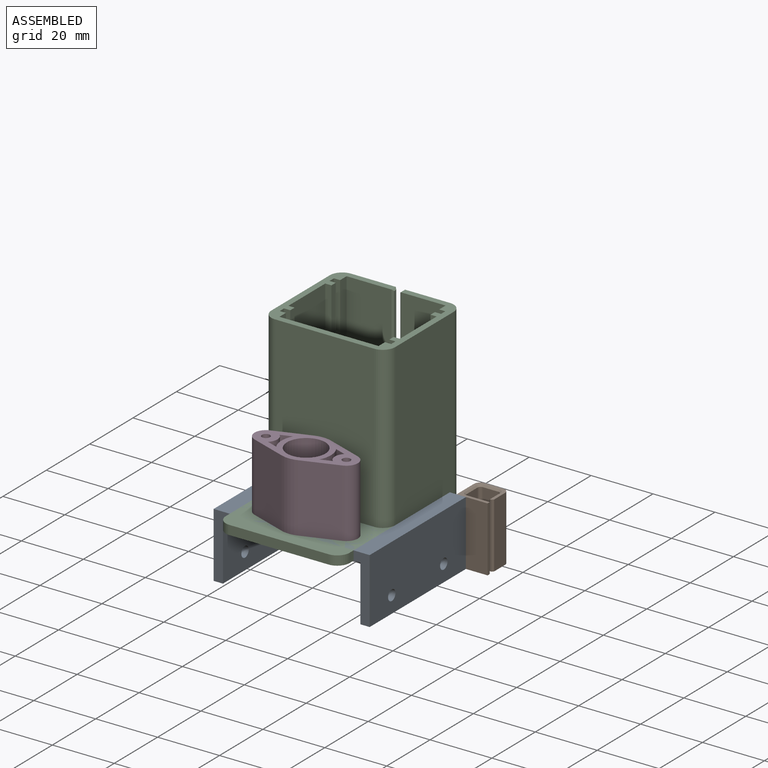
[diagram: assembled view]
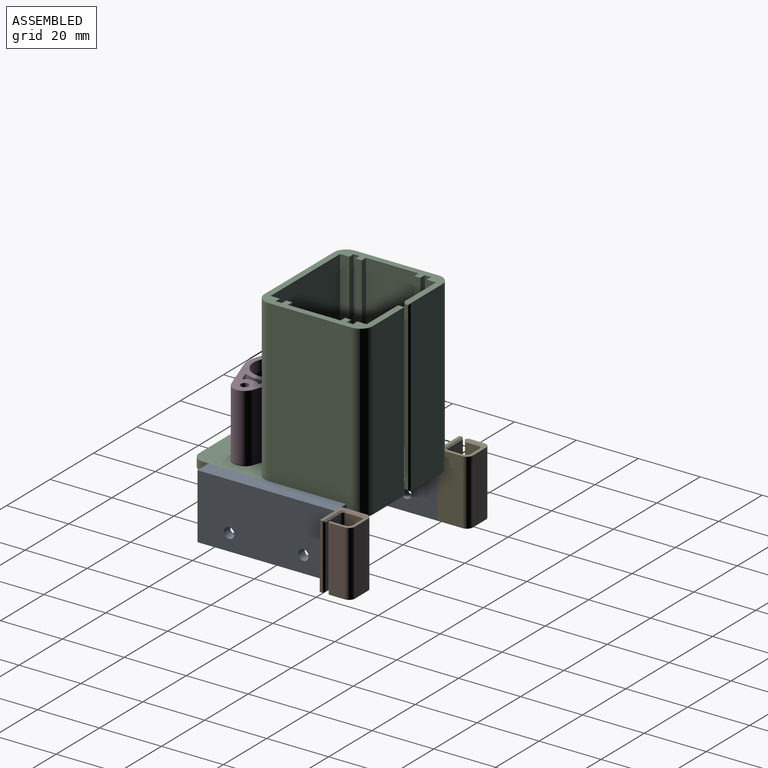
[diagram: assembled view, second angle]
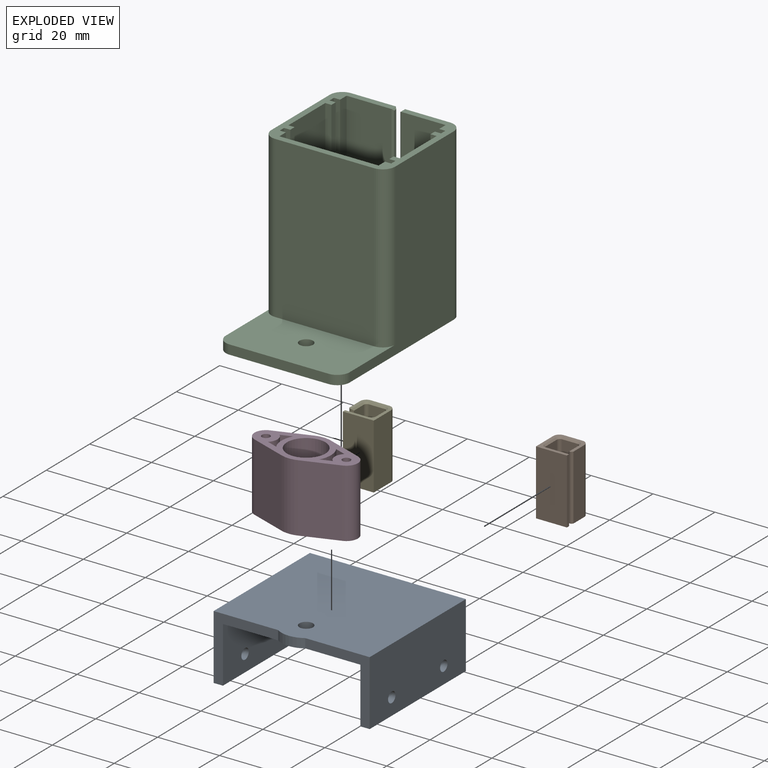
[diagram: exploded view]
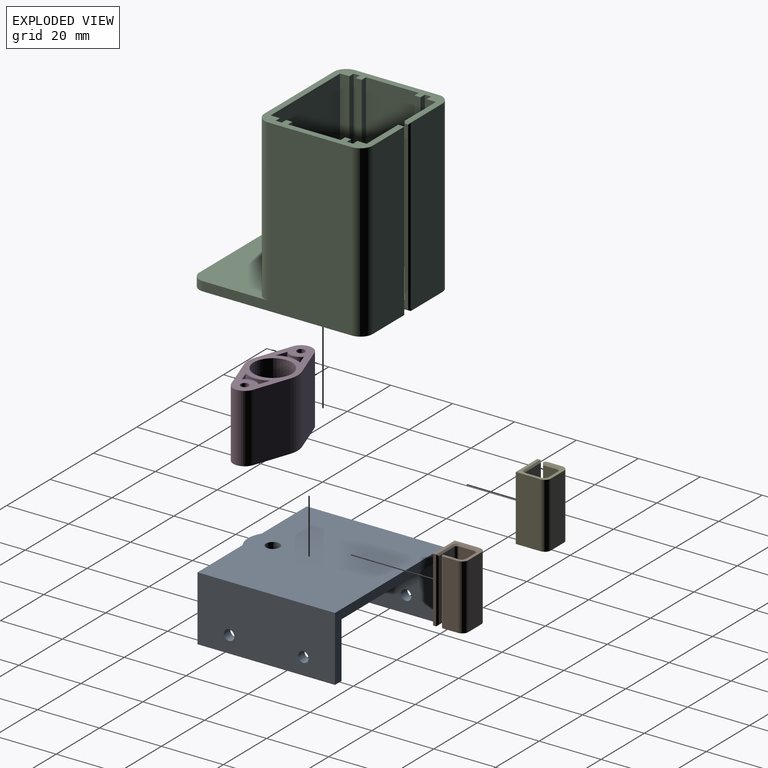
[diagram: exploded view, second angle]
ASSEMBLY  parts=5 mates=4
PART A: 17 faces, bbox 50.4x45.7x21 mm
  f0: plane 45.7x44.4mm, normal (0,0,-1), area 1963.9mm2, adj f1,f2,f3,f5,f7,f9,f11
  f1: plane 21x20.83mm, normal (0,-1,0), area 116.5mm2, adj f0,f2,f6,f8,f9,f10
  f2: cylinder r=8mm len=8.74mm, axis (0,0,-1), area 27.7mm2, adj f0,f1,f3,f8
  f3: plane 21x20.83mm, normal (0,-1,0), area 116.5mm2, adj f0,f2,f4,f8,f11,f12
  f4: plane 44.4x21mm, normal (1,0,0), area 914.2mm2, adj f3,f5,f8,f12,f13,f14
  f5: plane 50.4x21mm, normal (0,1,0), area 259.2mm2, adj f0,f4,f6,f8,f9,f10,f11,f12
  f6: plane 44.4x21mm, normal (-1,0,0), area 914.2mm2, adj f1,f5,f8,f10,f15,f16
  f7: cylinder r=2.2mm len=4.4mm, axis (0,0,-1), area 41.5mm2, adj f0,f8
  f8: plane 50.4x45.7mm, normal (0,0,1), area 2230.3mm2, adj f1,f2,f3,f4,f5,f6,f7
  f9: plane 44.4x18mm, normal (1,0,0), area 781mm2, adj f0,f1,f5,f10,f15,f16
  f10: plane 44.4x3mm, normal (0,0,-1), area 133.2mm2, adj f1,f5,f6,f9
  f11: plane 44.4x18mm, normal (-1,0,0), area 781mm2, adj f0,f3,f5,f12,f13,f14
  f12: plane 44.4x3mm, normal (0,0,-1), area 133.2mm2, adj f3,f4,f5,f11
  f13: cylinder r=1.7mm len=3.4mm, axis (-1,0,0), area 32mm2, adj f4,f11
  f14: cylinder r=1.7mm len=3.4mm, axis (-1,0,0), area 32mm2, adj f4,f11
  f15: cylinder r=1.7mm len=3.4mm, axis (-1,0,0), area 32mm2, adj f6,f9
  f16: cylinder r=1.7mm len=3.4mm, axis (-1,0,0), area 32mm2, adj f6,f9
PART B: 34 faces, bbox 10x10x21 mm
  f0: plane 20x7mm, normal (0,1,0), area 140mm2, adj f16,f17,f18,f20
  f1: plane 21x1mm, normal (-1,0,0), area 21mm2, adj f2,f10,f11,f18
  f2: plane 21x10mm, normal (0,-1,0), area 210mm2, adj f1,f3,f10,f11
  f3: plane 21x8mm, normal (1,0,0), area 168mm2, adj f2,f10,f11,f12
  f4: plane 21x6mm, normal (0,1,0), area 126mm2, adj f10,f11,f12,f13
  f5: plane 21x5mm, normal (-1,0,0), area 105mm2, adj f10,f11,f13,f33
  f6: plane 21x0.5mm, normal (0,-1,0), area 10.5mm2, adj f10,f11,f31,f33
  f7: plane 20x4.5mm, normal (1,0,0), area 90mm2, adj f14,f29,f31,f32
  f8: plane 20x5mm, normal (0,-1,0), area 100mm2, adj f14,f15,f25,f28
  f9: plane 20x5mm, normal (-1,0,0), area 100mm2, adj f15,f16,f21,f24
  f10: plane 10x10mm, normal (0,0,1), area 34.1mm2, adj f1,f2,f3,f4,f5,f6,f12,f13
  f11: plane 10x10mm, normal (0,0,-1), area 34.1mm2, adj f1,f2,f3,f4,f5,f6,f12,f13
  f12: cylinder r=2mm len=21mm, axis (0,0,-1), area 66mm2, adj f3,f4,f10,f11
  f13: cylinder r=2mm len=21mm, axis (0,0,1), area 66mm2, adj f4,f5,f10,f11
  f14: cylinder r=1mm len=20mm, axis (0,0,-1), area 31.4mm2, adj f7,f8,f27,f30
  f15: cylinder r=1mm len=20mm, axis (0,0,1), area 31.4mm2, adj f8,f9,f23,f26
  f16: cylinder r=1mm len=20mm, axis (0,0,1), area 31.4mm2, adj f0,f9,f19,f22
  f17: plane 7.5x0.5mm, normal (0,0.71,-0.71), area 5.1mm2, adj f0,f11,f18,f19
  f18: plane 21x0.5mm, normal (-0.71,0.71,0), area 14.5mm2, adj f0,f1,f17,f20
  f19: cone r=1.5mm half-angle=45deg, axis (0,0,-1), area 1.4mm2, adj f11,f16,f17,f21
  f20: plane 7.5x0.5mm, normal (0,0.71,0.71), area 5.1mm2, adj f0,f10,f18,f22
  f21: plane 5x0.5mm, normal (-0.71,0,-0.71), area 3.5mm2, adj f9,f11,f19,f23
  f22: cone r=1.5mm half-angle=45deg, axis (0,0,1), area 1.4mm2, adj f10,f16,f20,f24
  f23: cone r=1.5mm half-angle=45deg, axis (0,0,-1), area 1.4mm2, adj f11,f15,f21,f25
  f24: plane 5x0.5mm, normal (-0.71,0,0.71), area 3.5mm2, adj f9,f10,f22,f26
  f25: plane 5x0.5mm, normal (0,-0.71,-0.71), area 3.5mm2, adj f8,f11,f23,f27
  f26: cone r=1.5mm half-angle=45deg, axis (0,0,1), area 1.4mm2, adj f10,f15,f24,f28
  f27: cone r=1.5mm half-angle=45deg, axis (0,0,-1), area 1.4mm2, adj f11,f14,f25,f29
  f28: plane 5x0.5mm, normal (0,-0.71,0.71), area 3.5mm2, adj f8,f10,f26,f30
  f29: plane 5x0.5mm, normal (0.71,0,-0.71), area 3.4mm2, adj f7,f11,f27,f31
  f30: cone r=1.5mm half-angle=45deg, axis (0,0,1), area 1.4mm2, adj f10,f14,f28,f32
  f31: plane 21x0.5mm, normal (0.71,-0.71,0), area 14.5mm2, adj f6,f7,f29,f32
  f32: plane 5x0.5mm, normal (0.71,0,0.71), area 3.4mm2, adj f7,f10,f30,f31
  f33: plane 21x0.5mm, normal (-0.71,-0.71,0), area 14.8mm2, adj f5,f6,f10,f11
PART C: 57 faces, bbox 40x56x55 mm
  f0: plane 40x25mm, normal (0,0,1), area 824.8mm2, adj f1,f7,f8,f9,f27,f43,f44,f45
  f1: plane 55x48mm, normal (1,0,0), area 1548mm2, adj f0,f11,f42,f44,f46,f48
  f2: plane 55x14.5mm, normal (0,1,0), area 797.5mm2, adj f11,f42,f48,f54
  f3: plane 54x1.5mm, normal (-1,0,0), area 55.3mm2, adj f4,f10,f53,f54,f55,f56
  f4: plane 3x3mm, normal (0,1,0), area 6.2mm2, adj f3,f5,f10,f11,f49,f53
  f5: plane 54x1.5mm, normal (1,0,0), area 55.3mm2, adj f4,f10,f49,f50,f51,f52
  f6: plane 55x14.5mm, normal (0,1,0), area 797.5mm2, adj f11,f42,f47,f50
  f7: plane 55x48mm, normal (-1,0,0), area 1548mm2, adj f0,f11,f42,f43,f45,f47
  f8: plane 32x3mm, normal (0,-1,0), area 96mm2, adj f0,f11,f45,f46
  f9: cylinder r=2.2mm len=4.4mm, axis (0,0,-1), area 41.5mm2, adj f0,f11
  f10: plane 36x31.5mm, normal (0,0,1), area 1076.3mm2, adj f3,f4,f5,f12,f13,f14,f15,f16
  f11: plane 56x40mm, normal (0,0,-1), area 2205.1mm2, adj f1,f2,f4,f6,f7,f8,f9,f45
  f12: plane 52x32mm, normal (0,1,0), area 1664mm2, adj f10,f13,f41,f42
  f13: plane 52x3mm, normal (1,0,0), area 156mm2, adj f10,f12,f14,f42
  f14: plane 52x2mm, normal (0,1,0), area 104mm2, adj f10,f13,f15,f42
  f15: plane 52x2mm, normal (1,0,0), area 104mm2, adj f10,f14,f16,f42
  f16: plane 52x2mm, normal (0,-1,0), area 104mm2, adj f10,f15,f17,f42
  f17: plane 52x2mm, normal (1,0,0), area 104mm2, adj f10,f16,f18,f42
  f18: plane 52x2mm, normal (0,1,0), area 104mm2, adj f10,f17,f19,f42
  f19: plane 52x17mm, normal (1,0,0), area 884mm2, adj f10,f18,f20,f42
  f20: plane 52x2mm, normal (0,-1,0), area 104mm2, adj f10,f19,f21,f42
  f21: plane 52x2mm, normal (1,0,0), area 104mm2, adj f10,f20,f22,f42
  f22: plane 52x2mm, normal (0,1,0), area 104mm2, adj f10,f21,f23,f42
  f23: plane 52x2mm, normal (1,0,0), area 104mm2, adj f10,f22,f24,f42
  f24: plane 52x2mm, normal (0,-1,0), area 104mm2, adj f10,f23,f25,f42
  f25: plane 52x3mm, normal (1,0,0), area 156mm2, adj f10,f24,f26,f42
  f26: plane 52x14.5mm, normal (0,-1,0), area 754mm2, adj f10,f25,f42,f51
  f27: plane 52x32mm, normal (0,-1,0), area 1664mm2, adj f0,f42,f43,f44
  f28: plane 52x14.5mm, normal (0,-1,0), area 754mm2, adj f10,f29,f42,f55
  f29: plane 52x3mm, normal (-1,0,0), area 156mm2, adj f10,f28,f30,f42
  f30: plane 52x2mm, normal (0,-1,0), area 104mm2, adj f10,f29,f31,f42
  f31: plane 52x2mm, normal (-1,0,0), area 104mm2, adj f10,f30,f32,f42
  f32: plane 52x2mm, normal (0,1,0), area 104mm2, adj f10,f31,f33,f42
  f33: plane 52x2mm, normal (-1,0,0), area 104mm2, adj f10,f32,f34,f42
  f34: plane 52x2mm, normal (0,-1,0), area 104mm2, adj f10,f33,f35,f42
  f35: plane 52x17mm, normal (-1,0,0), area 884mm2, adj f10,f34,f36,f42
  f36: plane 52x2mm, normal (0,1,0), area 104mm2, adj f10,f35,f37,f42
  f37: plane 52x2mm, normal (-1,0,0), area 104mm2, adj f10,f36,f38,f42
  f38: plane 52x2mm, normal (0,-1,0), area 104mm2, adj f10,f37,f39,f42
  f39: plane 52x2mm, normal (-1,0,0), area 104mm2, adj f10,f38,f40,f42
  f40: plane 52x2mm, normal (0,1,0), area 104mm2, adj f10,f39,f41,f42
  f41: plane 52x3mm, normal (-1,0,0), area 156mm2, adj f10,f12,f40,f42
  f42: plane 40x35mm, normal (0,0,1), area 304.3mm2, adj f1,f2,f6,f7,f12,f13,f14,f15
  f43: cylinder r=4mm len=52mm, axis (0,0,-1), area 326.7mm2, adj f0,f7,f27,f42
  f44: cylinder r=4mm len=52mm, axis (0,0,1), area 326.7mm2, adj f0,f1,f27,f42
  f45: cylinder r=4mm len=4mm, axis (0,0,-1), area 18.8mm2, adj f0,f7,f8,f11
  f46: cylinder r=4mm len=4mm, axis (0,0,1), area 18.8mm2, adj f0,f1,f8,f11
  f47: cylinder r=4mm len=55mm, axis (0,0,1), area 345.6mm2, adj f6,f7,f11,f42
  f48: cylinder r=4mm len=55mm, axis (0,0,-1), area 345.6mm2, adj f1,f2,f11,f42
  f49: plane 2x0.5mm, normal (0.71,0,-0.71), area 1.2mm2, adj f4,f5,f11,f50
  f50: plane 55x0.5mm, normal (0.71,0.71,0), area 38.5mm2, adj f5,f6,f49,f52
  f51: plane 52x0.5mm, normal (0.71,-0.71,0), area 36.6mm2, adj f5,f10,f26,f52
  f52: plane 2x0.5mm, normal (0.71,0,0.71), area 1.1mm2, adj f5,f42,f50,f51
  f53: plane 2x0.5mm, normal (-0.71,0,-0.71), area 1.2mm2, adj f3,f4,f11,f54
  f54: plane 55x0.5mm, normal (-0.71,0.71,0), area 38.5mm2, adj f2,f3,f53,f56
  f55: plane 52x0.5mm, normal (-0.71,-0.71,0), area 36.6mm2, adj f3,f10,f28,f56
  f56: plane 2x0.5mm, normal (-0.71,0,0.71), area 1.1mm2, adj f3,f42,f54,f55
PART D: 21 faces, bbox 33.4x16x22 mm
  f0: plane 22x11.58mm, normal (0.33,0.94,0), area 269.9mm2, adj f1,f15,f19,f20
  f1: cylinder r=8mm len=22mm, axis (0,0,-1), area 118.7mm2, adj f0,f2,f19,f20
  f2: plane 22x11.58mm, normal (-0.33,0.94,0), area 269.9mm2, adj f1,f3,f19,f20
  f3: cylinder r=3.7mm len=22mm, axis (0,0,-1), area 200.8mm2, adj f2,f4,f19,f20
  f4: plane 22x11.58mm, normal (-0.33,-0.94,0), area 269.9mm2, adj f3,f5,f19,f20
  f5: cylinder r=8mm len=22mm, axis (0,0,-1), area 118.7mm2, adj f4,f6,f19,f20
  f6: plane 22x11.58mm, normal (0.33,-0.94,0), area 269.9mm2, adj f5,f15,f19,f20
  f7: cylinder r=8mm len=22mm, axis (0,0,-1), area 179.9mm2, adj f8,f16,f19,f20
  f8: plane 22x3.48mm, normal (-0.33,-0.94,0), area 81.2mm2, adj f7,f9,f19,f20
  f9: cylinder r=3.7mm len=22mm, axis (0,0,-1), area 132.6mm2, adj f8,f16,f19,f20
  f10: plane 22x3.48mm, normal (0.33,-0.94,0), area 81.2mm2, adj f11,f17,f19,f20
  f11: cylinder r=8mm len=22mm, axis (0,0,-1), area 179.9mm2, adj f10,f12,f19,f20
  f12: plane 22x3.48mm, normal (0.33,0.94,0), area 81.2mm2, adj f11,f17,f19,f20
  f13: cylinder r=1.3mm len=22mm, axis (0,0,-1), area 179.7mm2, adj f19,f20
  f14: cylinder r=6.2mm len=22mm, axis (0,0,-1), area 857mm2, adj f19,f20
  f15: cylinder r=3.7mm len=22mm, axis (0,0,-1), area 200.8mm2, adj f0,f6,f19,f20
  f16: plane 22x3.48mm, normal (-0.33,0.94,0), area 81.2mm2, adj f7,f9,f19,f20
  f17: cylinder r=3.7mm len=22mm, axis (0,0,-1), area 132.6mm2, adj f10,f12,f19,f20
  f18: cylinder r=1.3mm len=22mm, axis (0,0,-1), area 179.7mm2, adj f19,f20
  f19: plane 33.4x16mm, normal (0,0,1), area 206.1mm2, adj f0,f1,f2,f3,f4,f5,f6,f7
  f20: plane 33.4x16mm, normal (0,0,-1), area 206.1mm2, adj f0,f1,f2,f3,f4,f5,f6,f7
PART E: same geometry as B
PLACE A t=(0,15.5,-3)mm
PLACE B rot(axis=(0,1,0),180deg) t=(27.2,42.7,0)mm
PLACE C t=(0,15.5,-3)mm
PLACE D t=(0,0,30)mm
PLACE E t=(-27.2,42.7,-21)mm
MATE fastened C.f11 <-> A.f0  axis (0,0,1) through (0,15.5,-3)mm
MATE fastened D.f14 <-> A.f2  axis (0,0,-1) through (0,0,0)mm
MATE fastened B.f2 <-> A.f5  axis (0,-1,0) through (23.7,37.7,-10.5)mm
MATE fastened E.f2 <-> A.f5  axis (0,-1,0) through (-23.7,37.7,-10.5)mm
